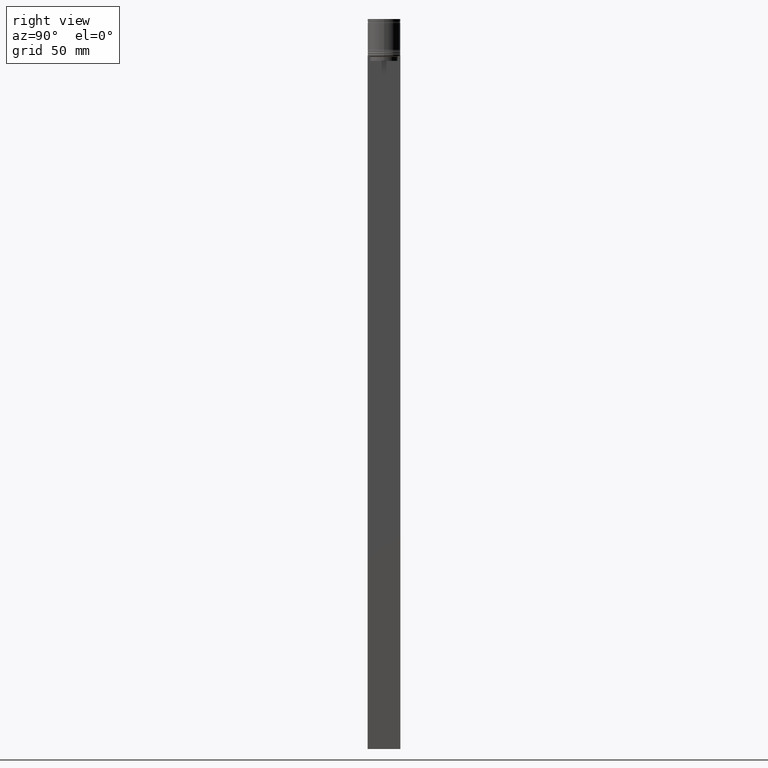
[diagram: clean part render]
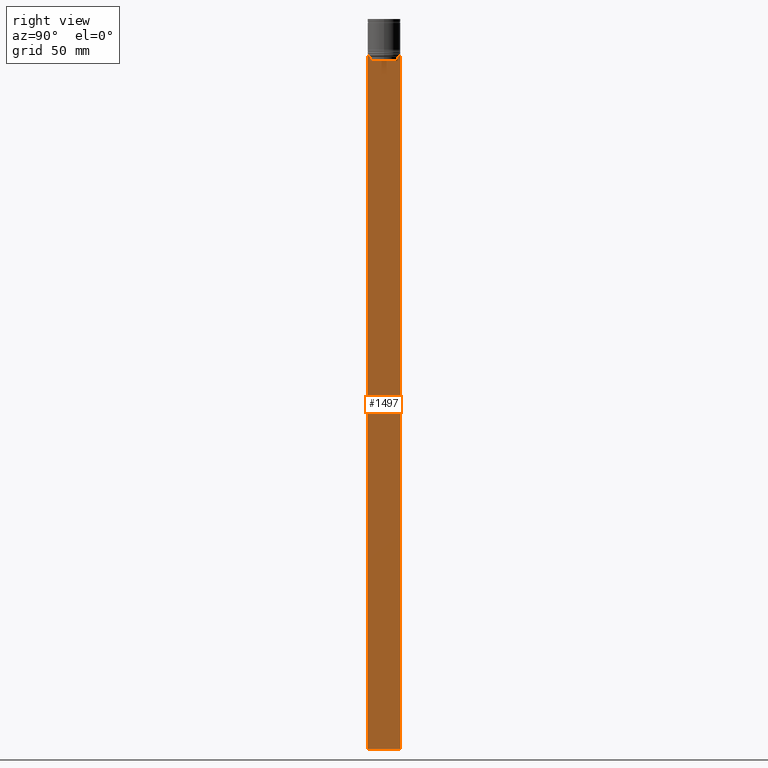
[diagram: same view with one face highlighted and labeled with its STEP entity id]
A machine part, right view. The second image highlights one B-rep face of the part: STEP entity #1497.
In plain terms, the highlighted planar face has unit normal (-1, 0, 0).
Its self-contained STEP definition (entity closure, byte-faithful):
#17 = DIRECTION ( 'NONE',  ( 0.000000000000000000, -1.000000000000000000, 0.000000000000000000 ) ) ;
#46 = CARTESIAN_POINT ( 'NONE',  ( 0.5000000000000000000, 8.885943956609226646, -22.50000000000000000 ) ) ;
#54 = ORIENTED_EDGE ( 'NONE', *, *, #1804, .T. ) ;
#57 = DIRECTION ( 'NONE',  ( -1.000000000000000000, 0.000000000000000000, 0.000000000000000000 ) ) ;
#80 = FACE_OUTER_BOUND ( 'NONE', #2076, .T. ) ;
#114 = EDGE_CURVE ( 'NONE', #1401, #784, #310, .T. ) ;
#123 = EDGE_CURVE ( 'NONE', #784, #1886, #1903, .T. ) ;
#141 = B_SPLINE_CURVE_WITH_KNOTS ( 'NONE', 3,
 ( #639, #1600, #1741, #1114 ),
 .UNSPECIFIED., .F., .F.,
 ( 4, 4 ),
 ( 0.01511546479386905242, 0.01582316445439077568 ),
 .UNSPECIFIED. ) ;
#151 = CARTESIAN_POINT ( 'NONE',  ( 0.5000000000000000000, -10.00000000000000178, -22.50000000000000000 ) ) ;
#160 = ORIENTED_EDGE ( 'NONE', *, *, #1548, .T. ) ;
#172 = VECTOR ( 'NONE', #273, 1000.000000000000000 ) ;
#173 = VECTOR ( 'NONE', #400, 1000.000000000000000 ) ;
#185 = ORIENTED_EDGE ( 'NONE', *, *, #1828, .F. ) ;
#224 = DIRECTION ( 'NONE',  ( 0.000000000000000000, -1.000000000000000000, 0.000000000000000000 ) ) ;
#254 = DIRECTION ( 'NONE',  ( 0.000000000000000000, -1.000000000000000000, 0.000000000000000000 ) ) ;
#273 = DIRECTION ( 'NONE',  ( -0.000000000000000000, -0.000000000000000000, 1.000000000000000000 ) ) ;
#293 = LINE ( 'NONE', #1773, #865 ) ;
#296 = DIRECTION ( 'NONE',  ( 0.000000000000000000, -1.000000000000000000, 0.000000000000000000 ) ) ;
#307 = EDGE_CURVE ( 'NONE', #321, #1437, #141, .T. ) ;
#310 = LINE ( 'NONE', #1252, #357 ) ;
#312 = ORIENTED_EDGE ( 'NONE', *, *, #924, .T. ) ;
#318 = EDGE_CURVE ( 'NONE', #492, #1401, #1927, .T. ) ;
#321 = VERTEX_POINT ( 'NONE', #46 ) ;
#330 = DIRECTION ( 'NONE',  ( 0.000000000000000000, -1.000000000000000000, 0.000000000000000000 ) ) ;
#336 = LINE ( 'NONE', #504, #1413 ) ;
#357 = VECTOR ( 'NONE', #296, 1000.000000000000000 ) ;
#363 = CARTESIAN_POINT ( 'NONE',  ( 0.5000000000000000000, -8.885943956609226646, -22.50000000000000000 ) ) ;
#386 = ORIENTED_EDGE ( 'NONE', *, *, #307, .T. ) ;
#400 = DIRECTION ( 'NONE',  ( 0.000000000000000000, 0.000000000000000000, -1.000000000000000000 ) ) ;
#414 = CARTESIAN_POINT ( 'NONE',  ( 0.5000000000000000000, -8.719005764482785636, -22.66667454151159333 ) ) ;
#419 = ORIENTED_EDGE ( 'NONE', *, *, #114, .T. ) ;
#454 = ORIENTED_EDGE ( 'NONE', *, *, #1576, .T. ) ;
#492 = VERTEX_POINT ( 'NONE', #1394 ) ;
#504 = CARTESIAN_POINT ( 'NONE',  ( 0.5000000000000000000, -10.00000000000000178, -444.5000000000000000 ) ) ;
#520 = DIRECTION ( 'NONE',  ( 0.000000000000000000, 0.000000000000000000, -1.000000000000000000 ) ) ;
#557 = EDGE_CURVE ( 'NONE', #1886, #1128, #336, .T. ) ;
#577 = CARTESIAN_POINT ( 'NONE',  ( 0.5000000000000000000, -8.385105843100610912, -23.00000000000000000 ) ) ;
#585 = ORIENTED_EDGE ( 'NONE', *, *, #1538, .T. ) ;
#588 = CARTESIAN_POINT ( 'NONE',  ( 0.5000000000000000000, -8.552060194457766329, -22.83334167772666845 ) ) ;
#639 = CARTESIAN_POINT ( 'NONE',  ( 0.5000000000000000000, 8.885943956609226646, -22.50000000000000000 ) ) ;
#651 = VERTEX_POINT ( 'NONE', #1721 ) ;
#673 = CARTESIAN_POINT ( 'NONE',  ( 0.5000000000000000000, -9.887365675446622149, -22.50000000000000000 ) ) ;
#682 = ORIENTED_EDGE ( 'NONE', *, *, #123, .T. ) ;
#693 = VECTOR ( 'NONE', #520, 1000.000000000000000 ) ;
#704 = CARTESIAN_POINT ( 'NONE',  ( 0.5000000000000000000, -10.00000000000000178, -22.50000000000000000 ) ) ;
#720 = VECTOR ( 'NONE', #330, 1000.000000000000000 ) ;
#737 = CARTESIAN_POINT ( 'NONE',  ( 0.5000000000000000000, 8.385105843100610912, -23.00000000000000000 ) ) ;
#750 = CARTESIAN_POINT ( 'NONE',  ( 0.5000000000000000000, -10.00000000000000178, -444.5000000000000000 ) ) ;
#753 = VECTOR ( 'NONE', #1564, 1000.000000000000000 ) ;
#760 = CARTESIAN_POINT ( 'NONE',  ( 0.5000000000000000000, -10.00000000000000178, -2.475015605499213844 ) ) ;
#784 = VERTEX_POINT ( 'NONE', #704 ) ;
#824 = LINE ( 'NONE', #1991, #693 ) ;
#865 = VECTOR ( 'NONE', #17, 1000.000000000000000 ) ;
#869 = CARTESIAN_POINT ( 'NONE',  ( 0.5000000000000000000, 8.385105843100610912, 0.000000000000000000 ) ) ;
#904 = CARTESIAN_POINT ( 'NONE',  ( 0.5000000000000000000, -8.385105843100610912, -23.00000000000000000 ) ) ;
#918 = LINE ( 'NONE', #1598, #172 ) ;
#924 = EDGE_CURVE ( 'NONE', #931, #492, #1312, .T. ) ;
#931 = VERTEX_POINT ( 'NONE', #577 ) ;
#1046 = CARTESIAN_POINT ( 'NONE',  ( 0.5000000000000000000, -10.00000000000000178, -2.475015605499213844 ) ) ;
#1073 = CARTESIAN_POINT ( 'NONE',  ( 0.5000000000000000000, 9.999999999999998224, -22.50000000000000000 ) ) ;
#1093 = CARTESIAN_POINT ( 'NONE',  ( 0.5000000000000000000, 9.887365675446622149, -22.50000000000000000 ) ) ;
#1104 = ORIENTED_EDGE ( 'NONE', *, *, #557, .T. ) ;
#1114 = CARTESIAN_POINT ( 'NONE',  ( 0.5000000000000000000, 8.385105843100610912, -23.00000000000000000 ) ) ;
#1128 = VERTEX_POINT ( 'NONE', #2008 ) ;
#1133 = DIRECTION ( 'NONE',  ( 0.000000000000000000, 1.000000000000000000, 0.000000000000000000 ) ) ;
#1182 = VERTEX_POINT ( 'NONE', #1565 ) ;
#1201 = LINE ( 'NONE', #1843, #1840 ) ;
#1210 = EDGE_CURVE ( 'NONE', #651, #931, #918, .T. ) ;
#1233 = VERTEX_POINT ( 'NONE', #1093 ) ;
#1241 = VECTOR ( 'NONE', #224, 1000.000000000000000 ) ;
#1252 = CARTESIAN_POINT ( 'NONE',  ( 0.5000000000000000000, -10.00000000000000178, -22.50000000000000000 ) ) ;
#1312 = B_SPLINE_CURVE_WITH_KNOTS ( 'NONE', 3,
 ( #904, #588, #414, #363 ),
 .UNSPECIFIED., .F., .F.,
 ( 4, 4 ),
 ( 0.03898465126933124691, 0.03969388910599652709 ),
 .UNSPECIFIED. ) ;
#1363 = DIRECTION ( 'NONE',  ( 0.000000000000000000, 0.000000000000000000, 1.000000000000000000 ) ) ;
#1394 = CARTESIAN_POINT ( 'NONE',  ( 0.5000000000000000000, -8.885943956609226646, -22.50000000000000000 ) ) ;
#1401 = VERTEX_POINT ( 'NONE', #673 ) ;
#1413 = VECTOR ( 'NONE', #1133, 1000.000000000000000 ) ;
#1437 = VERTEX_POINT ( 'NONE', #737 ) ;
#1471 = VERTEX_POINT ( 'NONE', #1073 ) ;
#1497 = ADVANCED_FACE ( 'NONE', ( #80 ), #1854, .F. ) ;
#1538 = EDGE_CURVE ( 'NONE', #1471, #1233, #1201, .T. ) ;
#1548 = EDGE_CURVE ( 'NONE', #1437, #1182, #1678, .T. ) ;
#1561 = ORIENTED_EDGE ( 'NONE', *, *, #1210, .T. ) ;
#1564 = DIRECTION ( 'NONE',  ( 0.000000000000000000, 0.000000000000000000, -1.000000000000000000 ) ) ;
#1565 = CARTESIAN_POINT ( 'NONE',  ( 0.5000000000000000000, 8.385105843100610912, -25.50000000000000000 ) ) ;
#1576 = EDGE_CURVE ( 'NONE', #1233, #321, #293, .T. ) ;
#1598 = CARTESIAN_POINT ( 'NONE',  ( 0.5000000000000000000, -8.385105843100610912, 0.000000000000000000 ) ) ;
#1600 = CARTESIAN_POINT ( 'NONE',  ( 0.5000000000000000000, 8.719005771582343911, -22.66667453442325453 ) ) ;
#1665 = LINE ( 'NONE', #1670, #1241 ) ;
#1670 = CARTESIAN_POINT ( 'NONE',  ( 0.5000000000000000000, 8.400000000000000355, -25.50000000000000000 ) ) ;
#1678 = LINE ( 'NONE', #869, #173 ) ;
#1721 = CARTESIAN_POINT ( 'NONE',  ( 0.5000000000000000000, -8.385105843100610912, -25.50000000000000000 ) ) ;
#1741 = CARTESIAN_POINT ( 'NONE',  ( 0.5000000000000000000, 8.552060201981371179, -22.83334167021640582 ) ) ;
#1773 = CARTESIAN_POINT ( 'NONE',  ( 0.5000000000000000000, -10.00000000000000178, -22.50000000000000000 ) ) ;
#1804 = EDGE_CURVE ( 'NONE', #1182, #651, #1665, .T. ) ;
#1828 = EDGE_CURVE ( 'NONE', #1471, #1128, #824, .T. ) ;
#1840 = VECTOR ( 'NONE', #254, 1000.000000000000000 ) ;
#1843 = CARTESIAN_POINT ( 'NONE',  ( 0.5000000000000000000, -10.00000000000000178, -22.50000000000000000 ) ) ;
#1854 = PLANE ( 'NONE',  #2012 ) ;
#1862 = ORIENTED_EDGE ( 'NONE', *, *, #318, .T. ) ;
#1886 = VERTEX_POINT ( 'NONE', #750 ) ;
#1903 = LINE ( 'NONE', #760, #753 ) ;
#1927 = LINE ( 'NONE', #151, #720 ) ;
#1991 = CARTESIAN_POINT ( 'NONE',  ( 0.5000000000000000000, 9.999999999999998224, -2.475015605499213844 ) ) ;
#2008 = CARTESIAN_POINT ( 'NONE',  ( 0.5000000000000000000, 9.999999999999998224, -444.5000000000000000 ) ) ;
#2012 = AXIS2_PLACEMENT_3D ( 'NONE', #1046, #57, #1363 ) ;
#2076 = EDGE_LOOP ( 'NONE', ( #454, #386, #160, #54, #1561, #312, #1862, #419, #682, #1104, #185, #585 ) ) ;